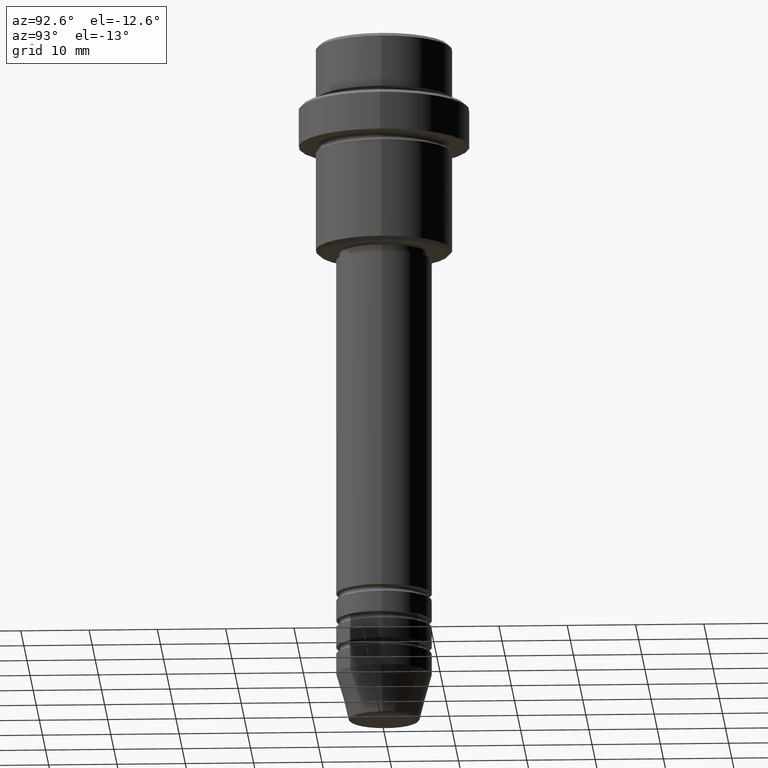
[diagram: clean part render]
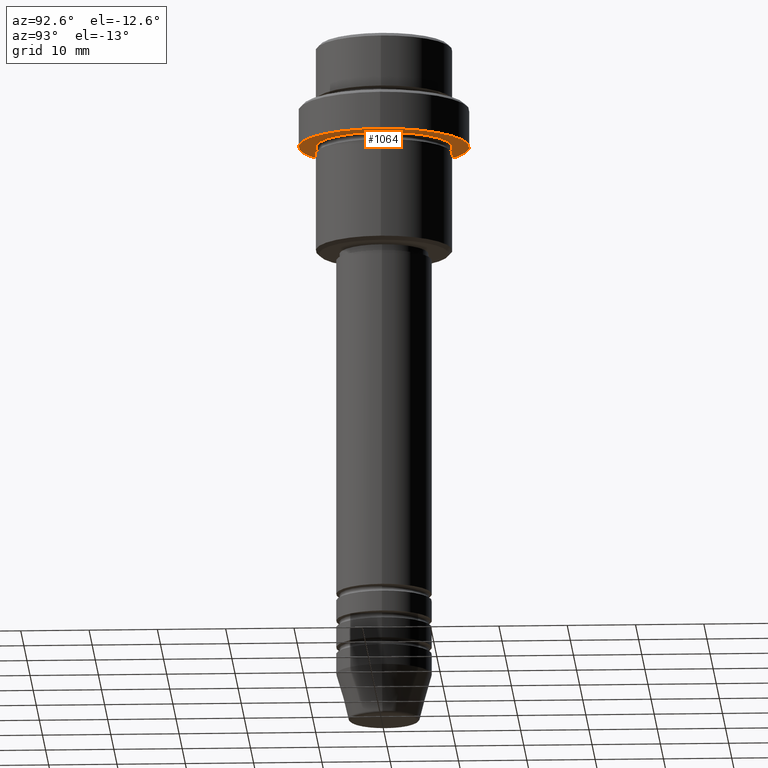
[diagram: same view with one face highlighted and labeled with its STEP entity id]
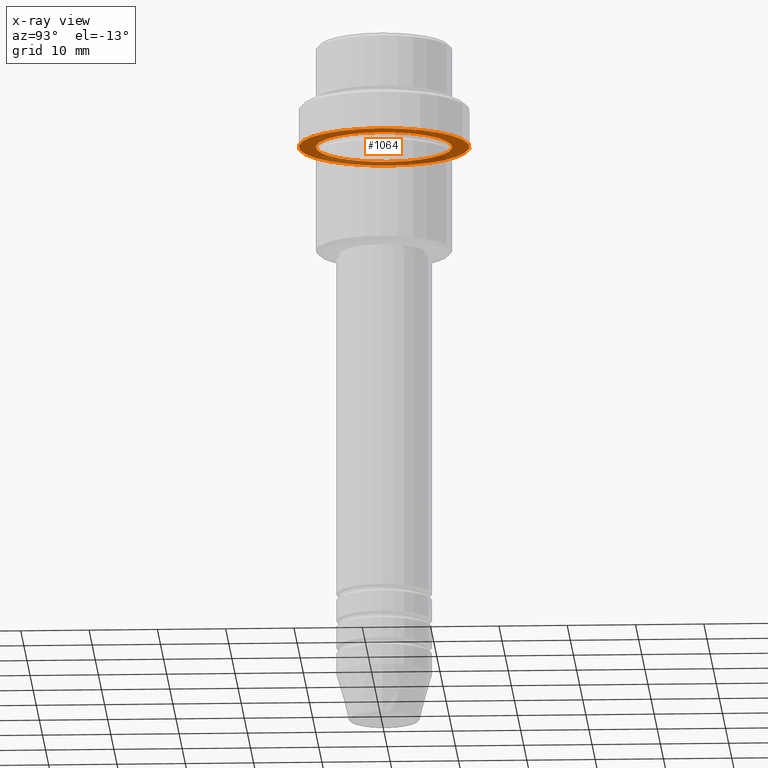
[diagram: x-ray of the same camera — body ghosted, the highlighted face saturated]
A machine part, auxiliary view. The second image highlights one B-rep face of the part: STEP entity #1064.
The next image is the same camera in x-ray: the body ghosted, the highlighted face saturated — about 30% of this face is hidden behind the body in this view.
In plain terms, the highlighted planar face has unit normal (0, 0, -1).
Its self-contained STEP definition (entity closure, byte-faithful):
#10 = DIRECTION ( 'NONE',  ( 0.000000000000000000, 0.000000000000000000, -1.000000000000000000 ) ) ;
#31 = CARTESIAN_POINT ( 'NONE',  ( 9.999999999999992895, 1.224646799147352468E-15, -15.00000000000000000 ) ) ;
#44 = VERTEX_POINT ( 'NONE', #31 ) ;
#48 = CARTESIAN_POINT ( 'NONE',  ( 0.000000000000000000, 0.000000000000000000, -15.00000000000000000 ) ) ;
#87 = AXIS2_PLACEMENT_3D ( 'NONE', #1032, #1127, #590 ) ;
#90 = FACE_OUTER_BOUND ( 'NONE', #554, .T. ) ;
#193 = PLANE ( 'NONE',  #1224 ) ;
#237 = DIRECTION ( 'NONE',  ( -1.000000000000000000, 0.000000000000000000, 0.000000000000000000 ) ) ;
#241 = CARTESIAN_POINT ( 'NONE',  ( -9.999999999999992895, 0.000000000000000000, -15.00000000000000000 ) ) ;
#265 = DIRECTION ( 'NONE',  ( -0.000000000000000000, -0.000000000000000000, 1.000000000000000000 ) ) ;
#345 = CIRCLE ( 'NONE', #472, 9.999999999999992895 ) ;
#362 = CIRCLE ( 'NONE', #541, 12.50000000000000000 ) ;
#402 = CARTESIAN_POINT ( 'NONE',  ( 12.50000000000000000, 0.000000000000000000, -15.00000000000000000 ) ) ;
#433 = DIRECTION ( 'NONE',  ( -1.000000000000000000, 0.000000000000000000, -0.000000000000000000 ) ) ;
#472 = AXIS2_PLACEMENT_3D ( 'NONE', #771, #1214, #237 ) ;
#499 = CARTESIAN_POINT ( 'NONE',  ( 0.000000000000000000, 0.000000000000000000, -15.00000000000000000 ) ) ;
#528 = ORIENTED_EDGE ( 'NONE', *, *, #909, .F. ) ;
#534 = FACE_BOUND ( 'NONE', #1310, .T. ) ;
#541 = AXIS2_PLACEMENT_3D ( 'NONE', #48, #265, #688 ) ;
#554 = EDGE_LOOP ( 'NONE', ( #528, #1056 ) ) ;
#590 = DIRECTION ( 'NONE',  ( 1.000000000000000000, 0.000000000000000000, 0.000000000000000000 ) ) ;
#615 = DIRECTION ( 'NONE',  ( -0.000000000000000000, -0.000000000000000000, 1.000000000000000000 ) ) ;
#652 = CIRCLE ( 'NONE', #1180, 9.999999999999992895 ) ;
#672 = CIRCLE ( 'NONE', #87, 12.50000000000000000 ) ;
#673 = ORIENTED_EDGE ( 'NONE', *, *, #1282, .T. ) ;
#688 = DIRECTION ( 'NONE',  ( 1.000000000000000000, 0.000000000000000000, 0.000000000000000000 ) ) ;
#742 = EDGE_CURVE ( 'NONE', #947, #1192, #362, .T. ) ;
#764 = EDGE_CURVE ( 'NONE', #44, #1402, #345, .T. ) ;
#771 = CARTESIAN_POINT ( 'NONE',  ( 0.000000000000000000, 0.000000000000000000, -15.00000000000000000 ) ) ;
#909 = EDGE_CURVE ( 'NONE', #1192, #947, #672, .T. ) ;
#932 = DIRECTION ( 'NONE',  ( -1.000000000000000000, 0.000000000000000000, 0.000000000000000000 ) ) ;
#947 = VERTEX_POINT ( 'NONE', #1142 ) ;
#1032 = CARTESIAN_POINT ( 'NONE',  ( 0.000000000000000000, 0.000000000000000000, -15.00000000000000000 ) ) ;
#1056 = ORIENTED_EDGE ( 'NONE', *, *, #742, .F. ) ;
#1064 = ADVANCED_FACE ( 'NONE', ( #534, #90 ), #193, .T. ) ;
#1127 = DIRECTION ( 'NONE',  ( -0.000000000000000000, -0.000000000000000000, 1.000000000000000000 ) ) ;
#1142 = CARTESIAN_POINT ( 'NONE',  ( -12.50000000000000000, 1.530808498934191521E-15, -15.00000000000000000 ) ) ;
#1180 = AXIS2_PLACEMENT_3D ( 'NONE', #499, #615, #932 ) ;
#1192 = VERTEX_POINT ( 'NONE', #402 ) ;
#1214 = DIRECTION ( 'NONE',  ( -0.000000000000000000, -0.000000000000000000, 1.000000000000000000 ) ) ;
#1224 = AXIS2_PLACEMENT_3D ( 'NONE', #1311, #10, #433 ) ;
#1282 = EDGE_CURVE ( 'NONE', #1402, #44, #652, .T. ) ;
#1307 = ORIENTED_EDGE ( 'NONE', *, *, #764, .T. ) ;
#1310 = EDGE_LOOP ( 'NONE', ( #673, #1307 ) ) ;
#1311 = CARTESIAN_POINT ( 'NONE',  ( 0.000000000000000000, 12.50000000000000000, -15.00000000000000000 ) ) ;
#1402 = VERTEX_POINT ( 'NONE', #241 ) ;